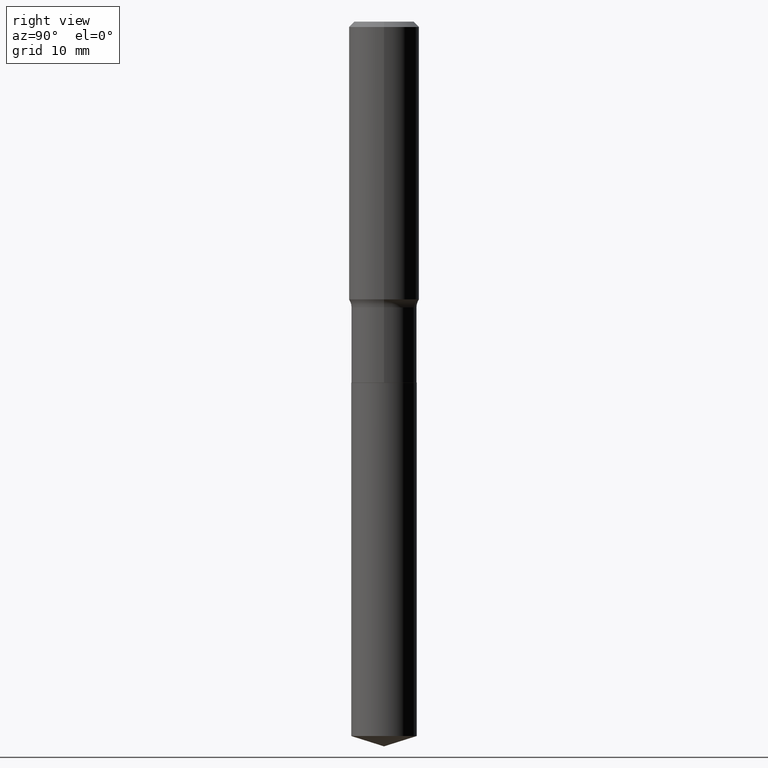
[diagram: clean part render]
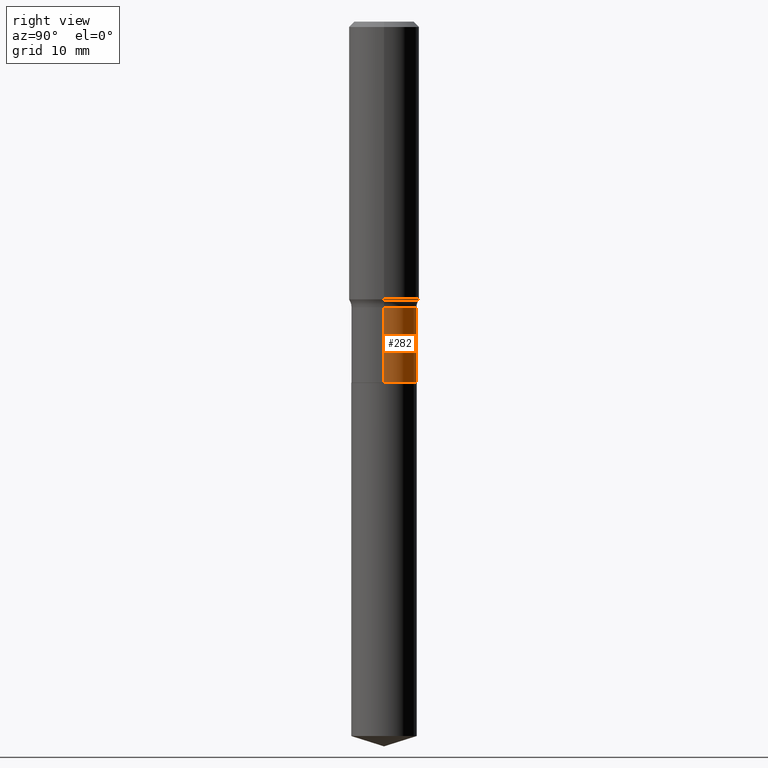
[diagram: same view with one face highlighted and labeled with its STEP entity id]
A machine part, right view. The second image highlights one B-rep face of the part: STEP entity #282.
In plain terms, the highlighted cylindrical surface (edge-blend (fillet) strip) has radius 4.6495 mm, axis along (-0, 0, 1).
Its self-contained STEP definition (entity closure, byte-faithful):
#20 = CARTESIAN_POINT ( 'NONE',  ( 0.1830499999999999072, -1.278231318150470470E-15, 8.925841588094455250E-30 ) ) ;
#21 = VERTEX_POINT ( 'NONE', #323 ) ;
#30 = EDGE_LOOP ( 'NONE', ( #202, #319, #418, #391 ) ) ;
#50 = CARTESIAN_POINT ( 'NONE',  ( 0.000000000000000000, 0.000000000000000000, 0.000000000000000000 ) ) ;
#82 = CARTESIAN_POINT ( 'NONE',  ( -0.1830499999999999072, 1.300648477808862731E-15, -9.004110682711601185E-30 ) ) ;
#114 = DIRECTION ( 'NONE',  ( 1.000000000000000000, -6.982962677686269077E-15, 0.000000000000000000 ) ) ;
#124 = VECTOR ( 'NONE', #377, 39.37007874015748143 ) ;
#129 = CYLINDRICAL_SURFACE ( 'NONE', #483, 0.1830499999999999072 ) ;
#133 = LINE ( 'NONE', #20, #368 ) ;
#151 = VERTEX_POINT ( 'NONE', #152 ) ;
#152 = CARTESIAN_POINT ( 'NONE',  ( 0.1830499999999999350, -8.327881289408665635E-15, -2.019099999999999895 ) ) ;
#154 = DIRECTION ( 'NONE',  ( -2.445468806185136597E-29, 3.491481338843145583E-15, 1.000000000000000000 ) ) ;
#160 = DIRECTION ( 'NONE',  ( -2.445468806185136597E-29, 3.491481338843145583E-15, 1.000000000000000000 ) ) ;
#186 = EDGE_CURVE ( 'NONE', #206, #303, #482, .T. ) ;
#191 = EDGE_CURVE ( 'NONE', #151, #21, #490, .T. ) ;
#202 = ORIENTED_EDGE ( 'NONE', *, *, #191, .T. ) ;
#205 = FACE_OUTER_BOUND ( 'NONE', #30, .T. ) ;
#206 = VERTEX_POINT ( 'NONE', #304 ) ;
#228 = AXIS2_PLACEMENT_3D ( 'NONE', #231, #154, #114 ) ;
#231 = CARTESIAN_POINT ( 'NONE',  ( 3.909326433567559047E-29, -5.581482068274652880E-15, -1.598600000000000021 ) ) ;
#232 = DIRECTION ( 'NONE',  ( 1.000000000000000000, -6.982962677686266711E-15, 4.876176775795935232E-29 ) ) ;
#257 = DIRECTION ( 'NONE',  ( -2.445468806185136597E-29, 3.491481338843145583E-15, 1.000000000000000000 ) ) ;
#258 = EDGE_CURVE ( 'NONE', #21, #303, #415, .T. ) ;
#278 = CARTESIAN_POINT ( 'NONE',  ( -0.1830499999999999072, -5.014917541957560996E-15, -1.598600000000000021 ) ) ;
#282 = ADVANCED_FACE ( 'NONE', ( #205 ), #129, .T. ) ;
#303 = VERTEX_POINT ( 'NONE', #278 ) ;
#304 = CARTESIAN_POINT ( 'NONE',  ( 0.1830499999999999072, -6.859713386425123547E-15, -1.598600000000000021 ) ) ;
#319 = ORIENTED_EDGE ( 'NONE', *, *, #258, .T. ) ;
#323 = CARTESIAN_POINT ( 'NONE',  ( -0.1830499999999999350, -5.014917541957560996E-15, -2.019099999999999895 ) ) ;
#334 = EDGE_CURVE ( 'NONE', #151, #206, #133, .T. ) ;
#341 = DIRECTION ( 'NONE',  ( 1.000000000000000000, -6.982962677686267499E-15, 0.000000000000000000 ) ) ;
#368 = VECTOR ( 'NONE', #434, 39.37007874015748143 ) ;
#377 = DIRECTION ( 'NONE',  ( -2.445468806185136877E-29, 3.491481338843145188E-15, 1.000000000000000000 ) ) ;
#383 = CARTESIAN_POINT ( 'NONE',  ( 4.937646066568409466E-29, -7.049649971258195757E-15, -2.019099999999999895 ) ) ;
#391 = ORIENTED_EDGE ( 'NONE', *, *, #334, .F. ) ;
#415 = LINE ( 'NONE', #82, #124 ) ;
#418 = ORIENTED_EDGE ( 'NONE', *, *, #186, .F. ) ;
#434 = DIRECTION ( 'NONE',  ( -2.445468806185136877E-29, 3.491481338843145188E-15, 1.000000000000000000 ) ) ;
#480 = AXIS2_PLACEMENT_3D ( 'NONE', #383, #257, #341 ) ;
#482 = CIRCLE ( 'NONE', #228, 0.1830499999999999072 ) ;
#483 = AXIS2_PLACEMENT_3D ( 'NONE', #50, #160, #232 ) ;
#490 = CIRCLE ( 'NONE', #480, 0.1830499999999999350 ) ;